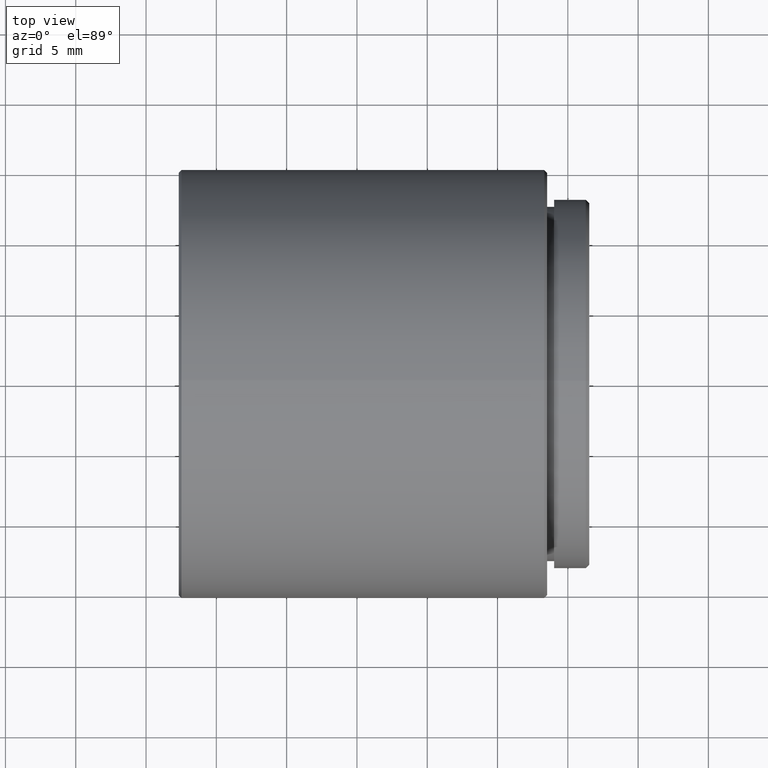
[diagram: clean part render]
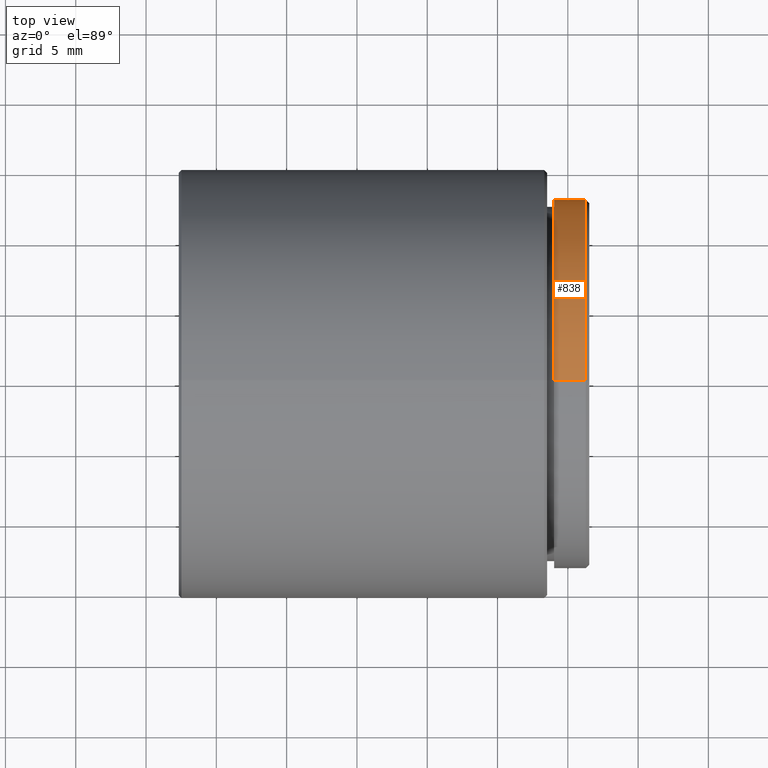
[diagram: same view with one face highlighted and labeled with its STEP entity id]
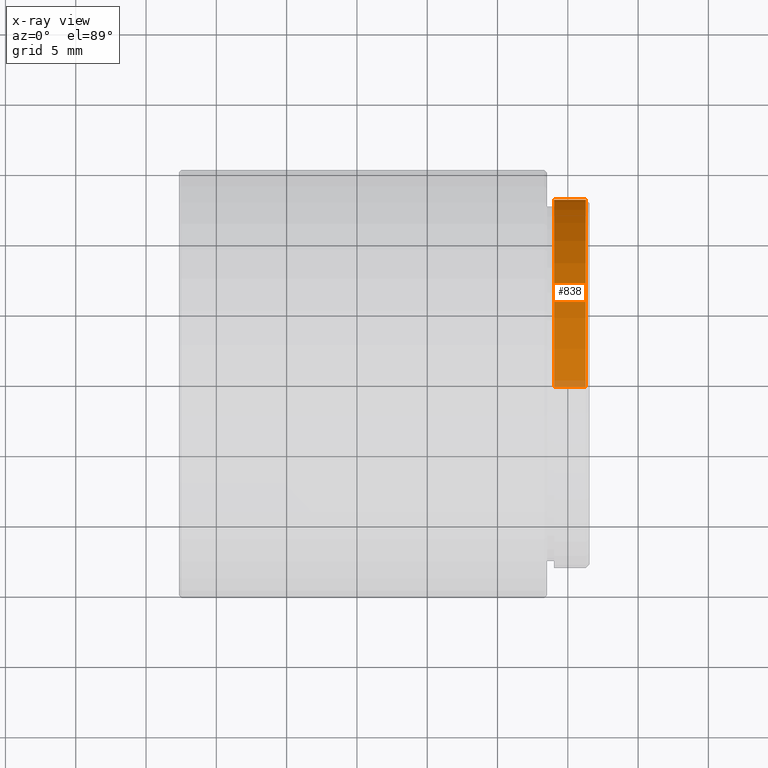
[diagram: x-ray of the same camera — body ghosted, the highlighted face saturated]
A machine part, top view. The second image highlights one B-rep face of the part: STEP entity #838.
The next image is the same camera in x-ray: the body ghosted, the highlighted face saturated — about 3% of this face is hidden behind the body in this view.
In plain terms, the highlighted cylindrical surface (partial cylindrical patch) has radius 13.1 mm, axis along (-1, -0, -0).
Its self-contained STEP definition (entity closure, byte-faithful):
#1 = VECTOR ( 'NONE', #607, 1000.000000000000000 ) ;
#31 = CARTESIAN_POINT ( 'NONE',  ( 6.275999999999984702, -20.10857142857141966, -13.10000000000000142 ) ) ;
#63 = DIRECTION ( 'NONE',  ( 1.000000000000000000, 0.000000000000000000, 0.000000000000000000 ) ) ;
#73 = CARTESIAN_POINT ( 'NONE',  ( 6.275999999999984702, -20.10857142857141966, 13.10000000000000142 ) ) ;
#110 = LINE ( 'NONE', #444, #519 ) ;
#132 = DIRECTION ( 'NONE',  ( -1.000000000000000000, 0.000000000000000000, 0.000000000000000000 ) ) ;
#135 = EDGE_CURVE ( 'NONE', #1572, #828, #1451, .T. ) ;
#247 = CIRCLE ( 'NONE', #376, 13.10000000000000142 ) ;
#255 = EDGE_CURVE ( 'NONE', #851, #1572, #110, .T. ) ;
#285 = EDGE_LOOP ( 'NONE', ( #1358, #374, #1150, #1450 ) ) ;
#374 = ORIENTED_EDGE ( 'NONE', *, *, #255, .T. ) ;
#376 = AXIS2_PLACEMENT_3D ( 'NONE', #387, #132, #508 ) ;
#387 = CARTESIAN_POINT ( 'NONE',  ( 6.275999999999984702, -20.10857142857141966, 0.000000000000000000 ) ) ;
#444 = CARTESIAN_POINT ( 'NONE',  ( 6.525999999999982926, -20.10857142857141966, -13.10000000000000142 ) ) ;
#501 = EDGE_CURVE ( 'NONE', #1019, #851, #247, .T. ) ;
#508 = DIRECTION ( 'NONE',  ( 0.000000000000000000, 0.000000000000000000, -1.000000000000000000 ) ) ;
#518 = DIRECTION ( 'NONE',  ( 0.000000000000000000, 0.000000000000000000, 1.000000000000000000 ) ) ;
#519 = VECTOR ( 'NONE', #1130, 1000.000000000000000 ) ;
#537 = DIRECTION ( 'NONE',  ( 0.000000000000000000, 0.000000000000000000, -1.000000000000000000 ) ) ;
#607 = DIRECTION ( 'NONE',  ( -1.000000000000000000, -0.000000000000000000, -0.000000000000000000 ) ) ;
#636 = DIRECTION ( 'NONE',  ( -1.000000000000000000, -0.000000000000000000, -0.000000000000000000 ) ) ;
#725 = LINE ( 'NONE', #966, #1 ) ;
#819 = EDGE_CURVE ( 'NONE', #1019, #828, #725, .T. ) ;
#828 = VERTEX_POINT ( 'NONE', #858 ) ;
#838 = ADVANCED_FACE ( 'NONE', ( #861 ), #1199, .T. ) ;
#851 = VERTEX_POINT ( 'NONE', #31 ) ;
#858 = CARTESIAN_POINT ( 'NONE',  ( 4.025999999999982926, -20.10857142857141966, 13.10000000000000142 ) ) ;
#861 = FACE_OUTER_BOUND ( 'NONE', #285, .T. ) ;
#893 = CARTESIAN_POINT ( 'NONE',  ( 4.025999999999982926, -20.10857142857141966, 0.000000000000000000 ) ) ;
#966 = CARTESIAN_POINT ( 'NONE',  ( 6.525999999999982926, -20.10857142857141966, 13.10000000000000142 ) ) ;
#1019 = VERTEX_POINT ( 'NONE', #73 ) ;
#1130 = DIRECTION ( 'NONE',  ( -1.000000000000000000, -0.000000000000000000, -0.000000000000000000 ) ) ;
#1150 = ORIENTED_EDGE ( 'NONE', *, *, #135, .T. ) ;
#1199 = CYLINDRICAL_SURFACE ( 'NONE', #1288, 13.10000000000000142 ) ;
#1285 = CARTESIAN_POINT ( 'NONE',  ( 4.025999999999982926, -20.10857142857141966, -13.10000000000000142 ) ) ;
#1288 = AXIS2_PLACEMENT_3D ( 'NONE', #1368, #636, #518 ) ;
#1358 = ORIENTED_EDGE ( 'NONE', *, *, #501, .T. ) ;
#1368 = CARTESIAN_POINT ( 'NONE',  ( 6.525999999999982926, -20.10857142857141966, 0.000000000000000000 ) ) ;
#1450 = ORIENTED_EDGE ( 'NONE', *, *, #819, .F. ) ;
#1451 = CIRCLE ( 'NONE', #1499, 13.10000000000000142 ) ;
#1499 = AXIS2_PLACEMENT_3D ( 'NONE', #893, #63, #537 ) ;
#1572 = VERTEX_POINT ( 'NONE', #1285 ) ;